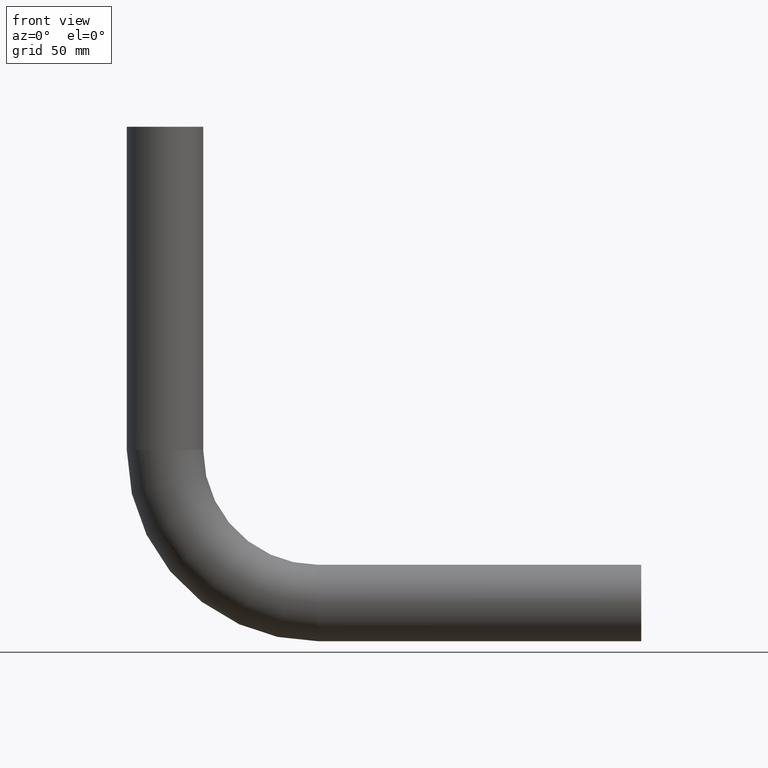
[diagram: clean part render]
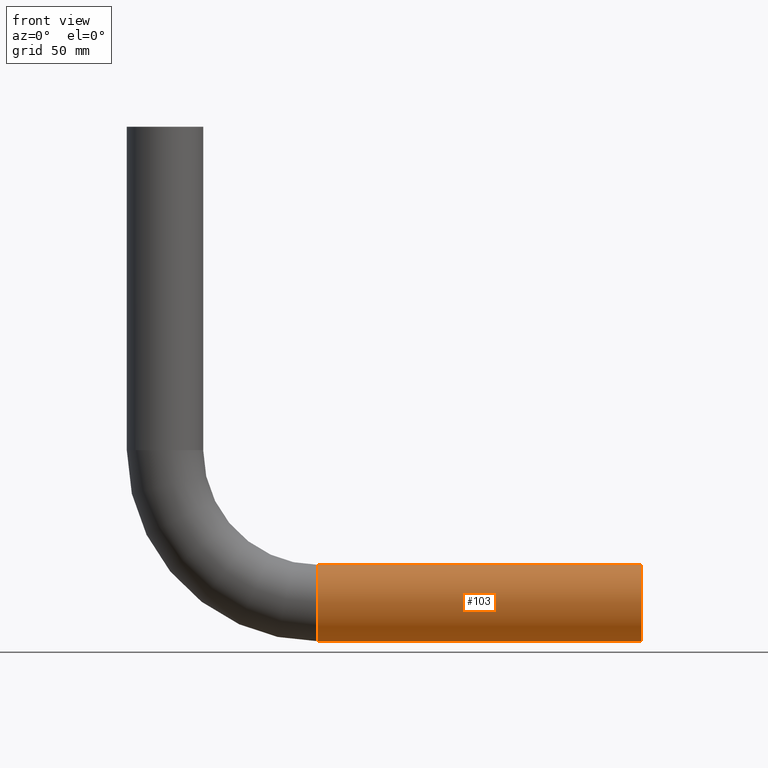
[diagram: same view with one face highlighted and labeled with its STEP entity id]
A machine part, front view. The second image highlights one B-rep face of the part: STEP entity #103.
In plain terms, the highlighted cylindrical surface (bore or boss wall) has radius 25.4 mm, axis along (1, 0, 0).
Its self-contained STEP definition (entity closure, byte-faithful):
#103=ADVANCED_FACE('',(#175,#177),#179,.T.);
#175=FACE_OUTER_BOUND('',#176,.T.);
#176=EDGE_LOOP('',(#212));
#177=FACE_OUTER_BOUND('',#178,.T.);
#178=EDGE_LOOP('',(#213));
#179=CYLINDRICAL_SURFACE('',#180,25.4);
#180=AXIS2_PLACEMENT_3D('',#181,#182,#183);
#181=CARTESIAN_POINT('',(101.6,0.,-316.6));
#182=DIRECTION('',(1.,0.,0.));
#183=DIRECTION('',(0.,0.,1.));
#212=ORIENTED_EDGE('',*,*,#222,.F.);
#213=ORIENTED_EDGE('',*,*,#224,.T.);
#222=EDGE_CURVE('',#234,#234,#235,.T.);
#224=EDGE_CURVE('',#238,#238,#239,.T.);
#234=VERTEX_POINT('',#262);
#235=CIRCLE('',#263,25.4);
#238=VERTEX_POINT('',#272);
#239=CIRCLE('',#273,25.4);
#262=CARTESIAN_POINT('',(316.6,0.,-291.2));
#263=AXIS2_PLACEMENT_3D('',#264,#265,#266);
#264=CARTESIAN_POINT('',(316.6,0.,-316.6));
#265=DIRECTION('',(1.,0.,-6.12323399573676E-017));
#266=DIRECTION('',(6.12323399573676E-017,0.,1.));
#272=CARTESIAN_POINT('',(101.6,0.,-291.2));
#273=AXIS2_PLACEMENT_3D('',#274,#275,#276);
#274=CARTESIAN_POINT('',(101.6,0.,-316.6));
#275=DIRECTION('',(1.,0.,-6.12323399573677E-017));
#276=DIRECTION('',(6.12323399573677E-017,-1.22464679914735E-016,1.));